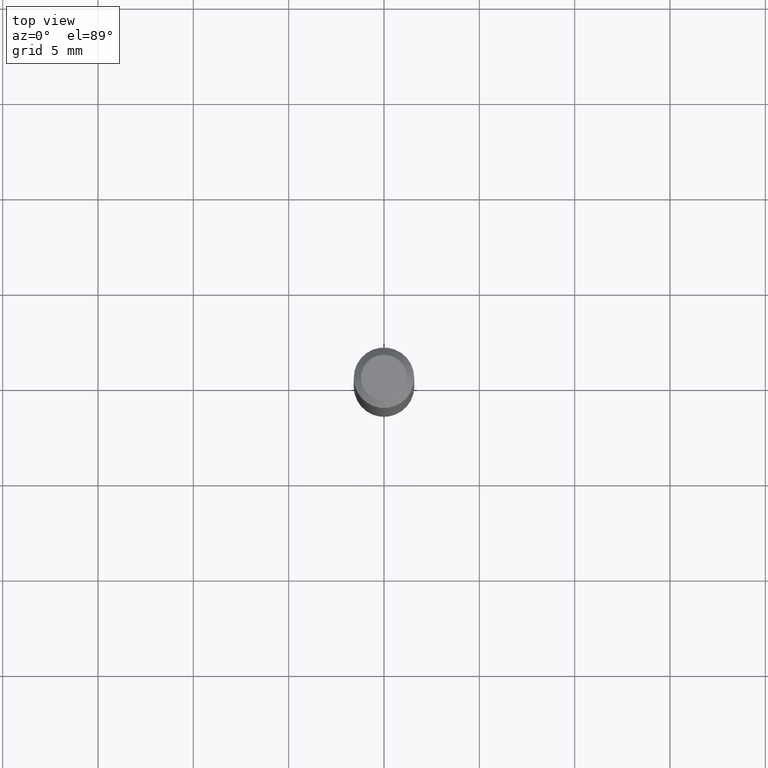
[diagram: clean part render]
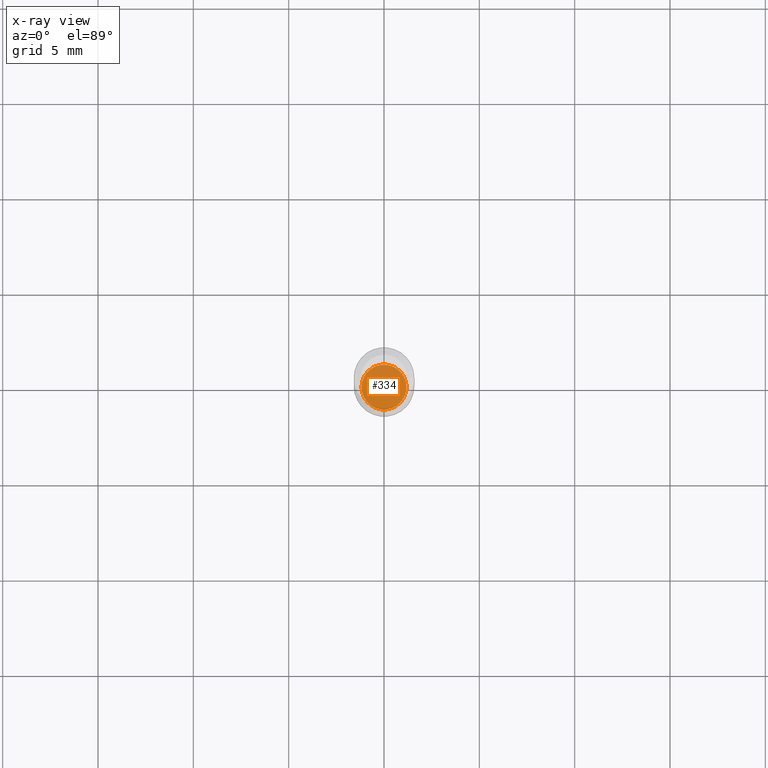
[diagram: x-ray — body ghosted, one internal face saturated and labeled with its STEP entity id]
A machine part, top view, then the same camera in x-ray: the body is ghosted and one INTERNAL B-rep face — a face not visible from any outside direction — is saturated and labeled: STEP entity #334.
In plain terms, the highlighted planar face has unit normal (-0, 0, 1).
Its self-contained STEP definition (entity closure, byte-faithful):
#8 = CIRCLE ( 'NONE', #80, 0.04639999999999999680 ) ;
#64 = VERTEX_POINT ( 'NONE', #144 ) ;
#70 = VERTEX_POINT ( 'NONE', #357 ) ;
#80 = AXIS2_PLACEMENT_3D ( 'NONE', #114, #309, #343 ) ;
#114 = CARTESIAN_POINT ( 'NONE',  ( 2.751152406958279232E-29, -3.927916506198539224E-15, -1.125000000000000222 ) ) ;
#127 = EDGE_CURVE ( 'NONE', #70, #64, #8, .T. ) ;
#142 = ORIENTED_EDGE ( 'NONE', *, *, #313, .F. ) ;
#144 = CARTESIAN_POINT ( 'NONE',  ( -0.04639999999999999680, -3.595575449631741560E-15, -1.125000000000000222 ) ) ;
#157 = DIRECTION ( 'NONE',  ( -2.445468806185136597E-29, 3.491481338843145583E-15, 1.000000000000000000 ) ) ;
#170 = ORIENTED_EDGE ( 'NONE', *, *, #127, .F. ) ;
#204 = EDGE_LOOP ( 'NONE', ( #170, #142 ) ) ;
#210 = AXIS2_PLACEMENT_3D ( 'NONE', #336, #157, #438 ) ;
#266 = FACE_OUTER_BOUND ( 'NONE', #204, .T. ) ;
#268 = AXIS2_PLACEMENT_3D ( 'NONE', #442, #378, #374 ) ;
#309 = DIRECTION ( 'NONE',  ( -2.445468806185136597E-29, 3.491481338843145583E-15, 1.000000000000000000 ) ) ;
#313 = EDGE_CURVE ( 'NONE', #64, #70, #432, .T. ) ;
#334 = ADVANCED_FACE ( 'NONE', ( #266 ), #410, .F. ) ;
#336 = CARTESIAN_POINT ( 'NONE',  ( 2.751152406958279232E-29, -3.927916506198539224E-15, -1.125000000000000222 ) ) ;
#343 = DIRECTION ( 'NONE',  ( 1.000000000000000000, -6.982962677686266711E-15, 0.000000000000000000 ) ) ;
#357 = CARTESIAN_POINT ( 'NONE',  ( 0.04639999999999999680, -4.251925974443182119E-15, -1.125000000000000222 ) ) ;
#374 = DIRECTION ( 'NONE',  ( 1.000000000000000000, -6.982962677686265922E-15, 4.876176775795935793E-29 ) ) ;
#378 = DIRECTION ( 'NONE',  ( -2.438088387897960049E-29, 3.491481338843145188E-15, 1.000000000000000000 ) ) ;
#410 = PLANE ( 'NONE',  #268 ) ;
#432 = CIRCLE ( 'NONE', #210, 0.04639999999999999680 ) ;
#438 = DIRECTION ( 'NONE',  ( 1.000000000000000000, -6.982962677686266711E-15, 0.000000000000000000 ) ) ;
#442 = CARTESIAN_POINT ( 'NONE',  ( 2.751152406958279232E-29, -3.927916506198539224E-15, -1.125000000000000222 ) ) ;